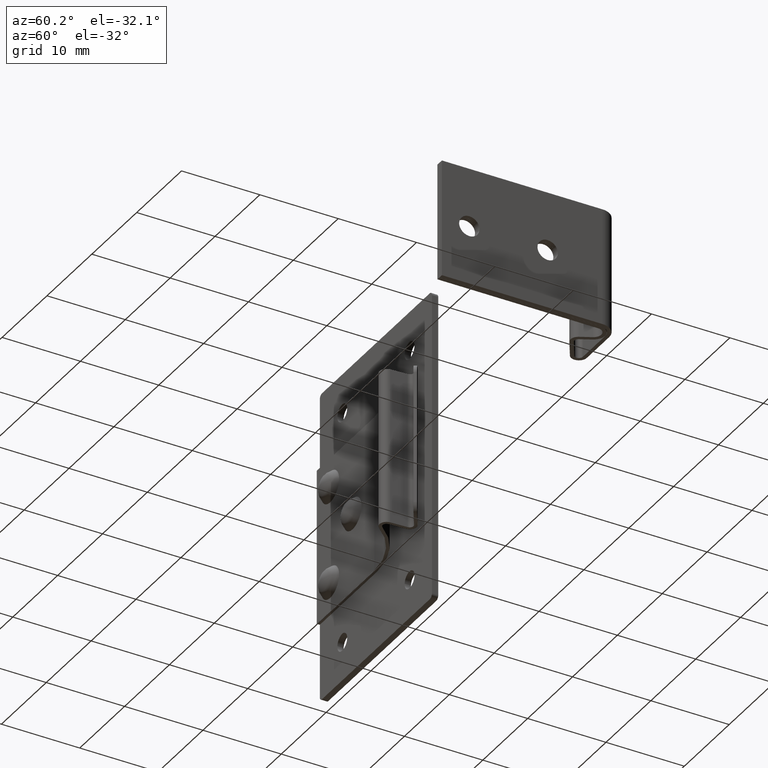
[diagram: clean part render]
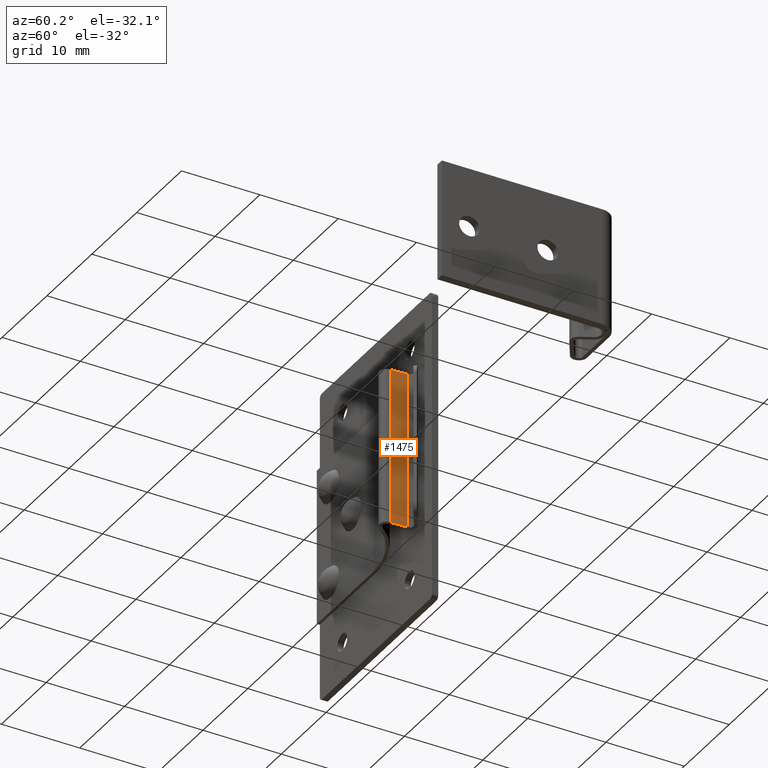
[diagram: same view with one face highlighted and labeled with its STEP entity id]
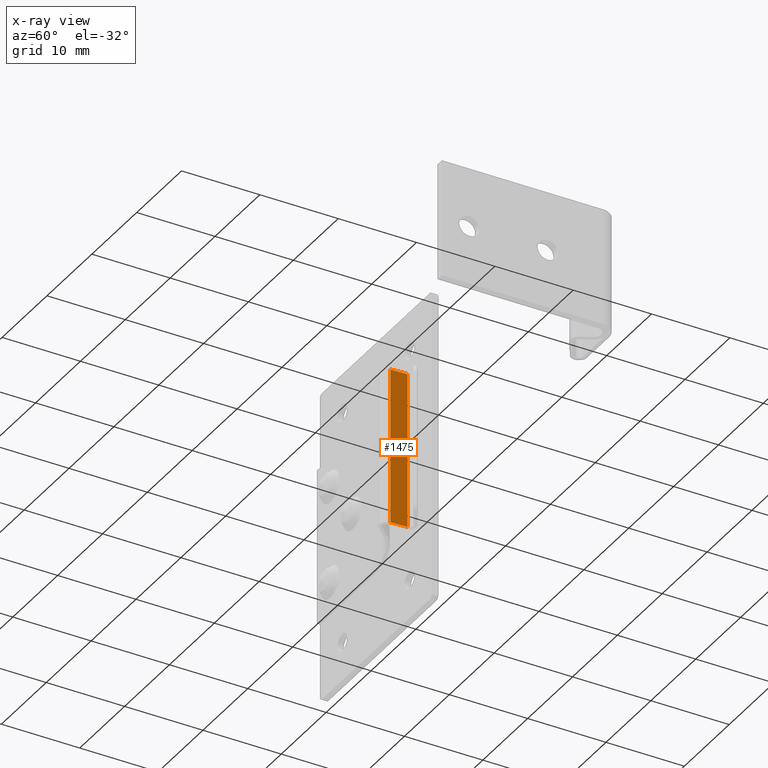
[diagram: x-ray of the same camera — body ghosted, the highlighted face saturated]
A machine part, auxiliary view. The second image highlights one B-rep face of the part: STEP entity #1475.
The next image is the same camera in x-ray: the body ghosted, the highlighted face saturated — about 0% of this face is hidden behind the body in this view.
In plain terms, the highlighted face is a freeform B-spline surface patch.
Its self-contained STEP definition (entity closure, byte-faithful):
#1156=CARTESIAN_POINT('',(22.399017000000001,-4.642166000000000,9.999984999999880));
#1157=VERTEX_POINT('',#1156);
#1173=CARTESIAN_POINT('',(22.500549361937949,-2.476585280236425,9.999984999999880));
#1174=VERTEX_POINT('',#1173);
#1175=CARTESIAN_POINT('',(22.500549361937949,-2.476585280236425,9.999984999999880));
#1176=CARTESIAN_POINT('',(22.399017000000001,-4.642166000000000,9.999984999999880));
#1177=QUASI_UNIFORM_CURVE('',1,(#1175,#1176),.UNSPECIFIED.,.F.,.U.);
#1178=EDGE_CURVE('',#1174,#1157,#1177,.T.);
#1218=CARTESIAN_POINT('',(22.500549361937949,-2.476585280236425,-10.0));
#1219=VERTEX_POINT('',#1218);
#1235=CARTESIAN_POINT('',(22.399017000000001,-4.642166000000000,-10.0));
#1236=VERTEX_POINT('',#1235);
#1237=CARTESIAN_POINT('',(22.500549361937949,-2.476585280236425,-10.0));
#1238=CARTESIAN_POINT('',(22.399017000000001,-4.642166000000000,-10.0));
#1239=QUASI_UNIFORM_CURVE('',1,(#1237,#1238),.UNSPECIFIED.,.F.,.U.);
#1240=EDGE_CURVE('',#1219,#1236,#1239,.T.);
#1452=CARTESIAN_POINT('',(22.399017000000001,-4.642166000000000,-10.0));
#1453=CARTESIAN_POINT('',(22.399017000000001,-4.642166000000000,9.999984999999880));
#1454=QUASI_UNIFORM_CURVE('',1,(#1452,#1453),.UNSPECIFIED.,.F.,.U.);
#1455=EDGE_CURVE('',#1236,#1157,#1454,.T.);
#1460=CARTESIAN_POINT('',(22.505620898454389,-2.368414629126162,-10.998999140532151));
#1461=CARTESIAN_POINT('',(22.393945456221392,-4.750336806004667,-10.998999140532151));
#1462=CARTESIAN_POINT('',(22.505620898454389,-2.368414629126162,10.998983246463030));
#1463=CARTESIAN_POINT('',(22.393945456221392,-4.750336806004667,10.998983246463030));
#1464=B_SPLINE_SURFACE_WITH_KNOTS('',1,1,((#1460,#1462),(#1461,#1463)),.UNSPECIFIED.,.F.,.F.,.U.,(2,2),(2,2),(0.0,2.384538668401830),(0.0,21.997982386995179),.UNSPECIFIED.);
#1465=ORIENTED_EDGE('',*,*,#1178,.T.);
#1466=ORIENTED_EDGE('',*,*,#1455,.F.);
#1467=ORIENTED_EDGE('',*,*,#1240,.F.);
#1468=CARTESIAN_POINT('',(22.500549361937949,-2.476585280236425,-10.0));
#1469=CARTESIAN_POINT('',(22.500549361937949,-2.476585280236425,9.999984999999880));
#1470=QUASI_UNIFORM_CURVE('',1,(#1468,#1469),.UNSPECIFIED.,.F.,.U.);
#1471=EDGE_CURVE('',#1219,#1174,#1470,.T.);
#1472=ORIENTED_EDGE('',*,*,#1471,.T.);
#1473=EDGE_LOOP('',(#1465,#1466,#1467,#1472));
#1474=FACE_OUTER_BOUND('',#1473,.T.);
#1475=ADVANCED_FACE('',(#1474),#1464,.F.);